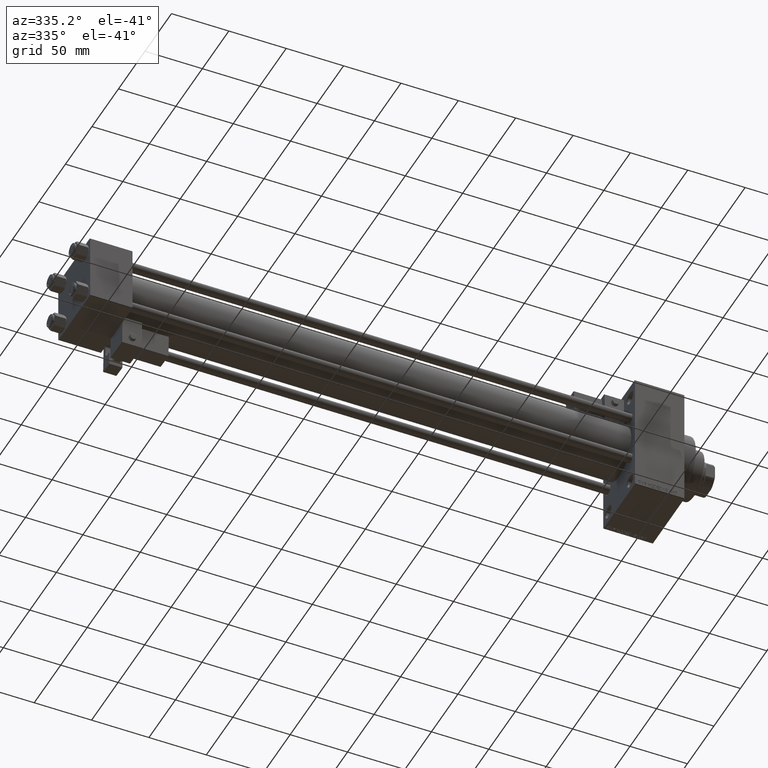
[diagram: clean part render]
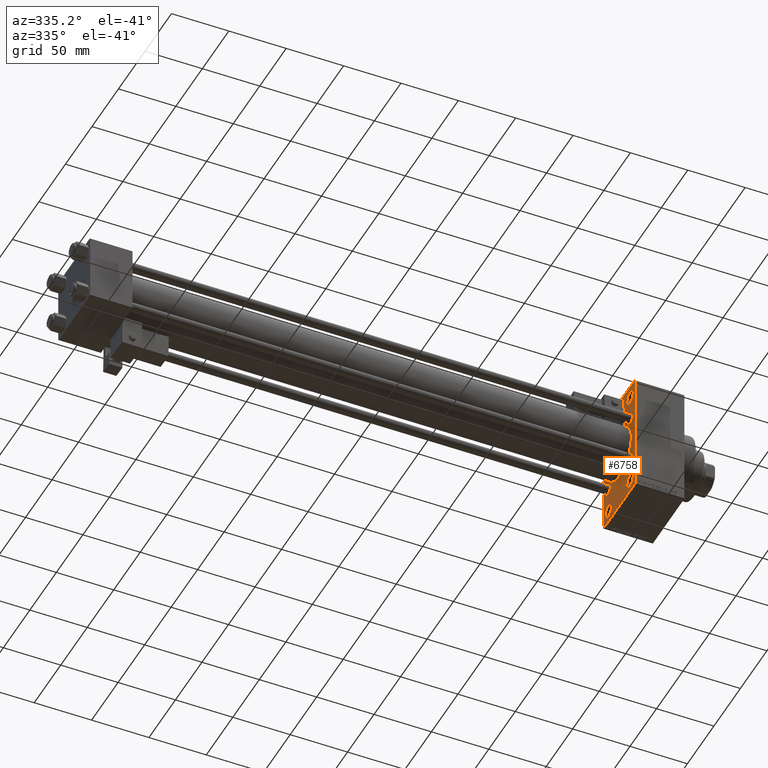
[diagram: same view with one face highlighted and labeled with its STEP entity id]
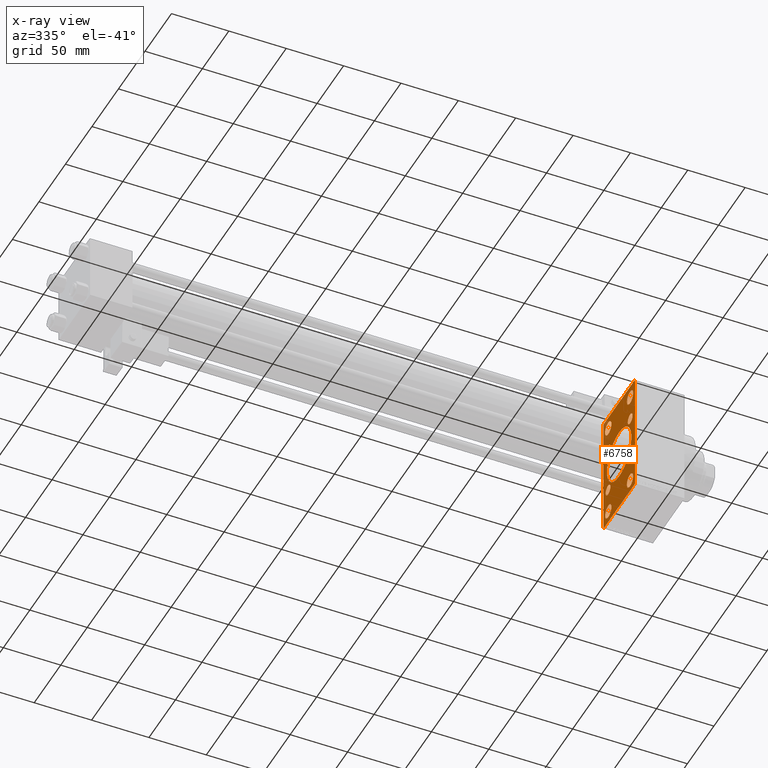
[diagram: x-ray of the same camera — body ghosted, the highlighted face saturated]
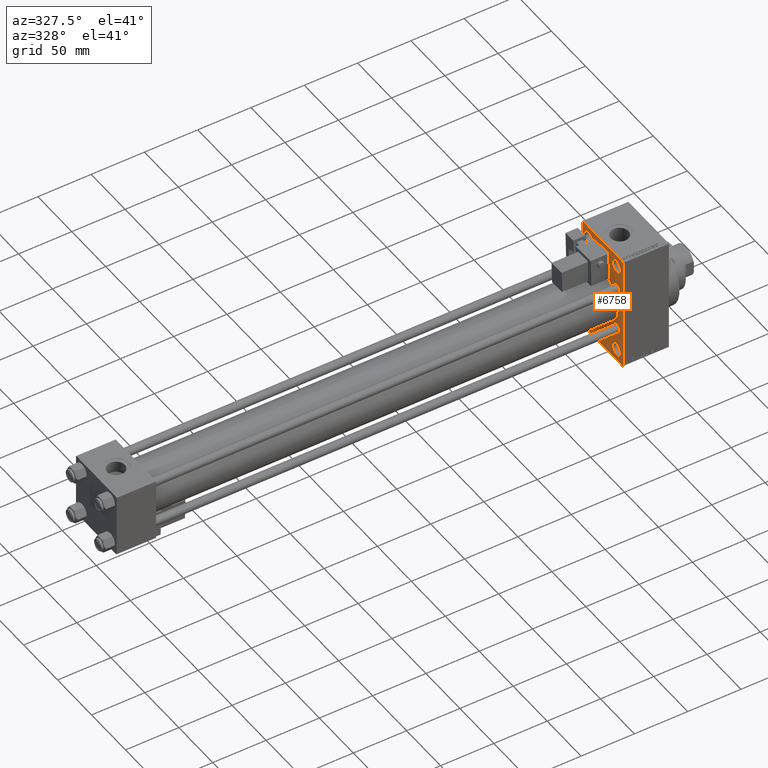
[diagram: same view with one face highlighted and labeled with its STEP entity id]
A machine part, auxiliary view. The second image highlights one B-rep face of the part: STEP entity #6758.
The next image is the same camera in x-ray: the body ghosted, the highlighted face saturated — about 7% of this face is hidden behind the body in this view.
A second angle (auxiliary view) of the same face is appended — the face is thin or edge-on in the first view.
In plain terms, the highlighted planar face has unit normal (-1, 0, 0).
Its self-contained STEP definition (entity closure, byte-faithful):
#145 = VECTOR ( 'NONE', #41804, 1000.000000000000000 ) ;
#149 = DIRECTION ( 'NONE',  ( 0.000000000000000000, 0.000000000000000000, -1.000000000000000000 ) ) ;
#318 = CARTESIAN_POINT ( 'NONE',  ( 475.0000000000000000, -20.50000000000000000, -49.49999999999977973 ) ) ;
#433 = ORIENTED_EDGE ( 'NONE', *, *, #10654, .T. ) ;
#554 = FACE_BOUND ( 'NONE', #15394, .T. ) ;
#781 = DIRECTION ( 'NONE',  ( 1.000000000000000000, -0.000000000000000000, 0.000000000000000000 ) ) ;
#843 = CARTESIAN_POINT ( 'NONE',  ( 475.0000000000000000, -20.50000000000000000, 37.50000000000021316 ) ) ;
#1181 = CARTESIAN_POINT ( 'NONE',  ( 475.0000000000000000, -20.50000000000000000, -43.50000000000000000 ) ) ;
#1565 = ORIENTED_EDGE ( 'NONE', *, *, #30755, .F. ) ;
#2304 = AXIS2_PLACEMENT_3D ( 'NONE', #37593, #15707, #49411 ) ;
#2659 = ORIENTED_EDGE ( 'NONE', *, *, #17881, .T. ) ;
#3098 = CARTESIAN_POINT ( 'NONE',  ( 475.0000000000000000, 29.99999999999999645, 53.99999999999999289 ) ) ;
#3755 = DIRECTION ( 'NONE',  ( 1.000000000000000000, -0.000000000000000000, 0.000000000000000000 ) ) ;
#3869 = AXIS2_PLACEMENT_3D ( 'NONE', #24591, #39925, #23592 ) ;
#3991 = EDGE_CURVE ( 'NONE', #45500, #45866, #14146, .T. ) ;
#4036 = ORIENTED_EDGE ( 'NONE', *, *, #25862, .T. ) ;
#4416 = AXIS2_PLACEMENT_3D ( 'NONE', #1181, #46461, #42934 ) ;
#4889 = CARTESIAN_POINT ( 'NONE',  ( 475.0000000000000000, -2.602085213965210642E-15, 0.000000000000000000 ) ) ;
#4954 = ORIENTED_EDGE ( 'NONE', *, *, #30542, .T. ) ;
#5023 = CARTESIAN_POINT ( 'NONE',  ( 475.0000000000000000, 20.50000000000000000, -43.50000000000000000 ) ) ;
#5067 = FACE_BOUND ( 'NONE', #29469, .T. ) ;
#5218 = DIRECTION ( 'NONE',  ( 0.000000000000000000, 0.000000000000000000, 1.000000000000000000 ) ) ;
#5305 = VERTEX_POINT ( 'NONE', #15485 ) ;
#5471 = ORIENTED_EDGE ( 'NONE', *, *, #7710, .T. ) ;
#5509 = VERTEX_POINT ( 'NONE', #20967 ) ;
#5640 = CARTESIAN_POINT ( 'NONE',  ( 475.0000000000000000, 41.99999999999832312, -42.00000000000298428 ) ) ;
#5777 = ORIENTED_EDGE ( 'NONE', *, *, #21333, .T. ) ;
#5825 = LINE ( 'NONE', #44813, #26055 ) ;
#5847 = EDGE_CURVE ( 'NONE', #41041, #48959, #7759, .T. ) ;
#6113 = DIRECTION ( 'NONE',  ( 0.000000000000000000, 0.000000000000000000, 1.000000000000000000 ) ) ;
#6187 = AXIS2_PLACEMENT_3D ( 'NONE', #14362, #21403, #29684 ) ;
#6601 = LINE ( 'NONE', #13909, #145 ) ;
#6655 = EDGE_LOOP ( 'NONE', ( #36504, #41185 ) ) ;
#6730 = EDGE_CURVE ( 'NONE', #5509, #5305, #42311, .T. ) ;
#6758 = ADVANCED_FACE ( 'NONE', ( #16384, #24423, #46814, #5067, #31462, #27698, #554, #20159, #34988, #46572 ), #19912, .T. ) ;
#7269 = CARTESIAN_POINT ( 'NONE',  ( 475.0000000000000000, 20.50000000000000000, 49.49999999999977973 ) ) ;
#7348 = ORIENTED_EDGE ( 'NONE', *, *, #3991, .T. ) ;
#7349 = CARTESIAN_POINT ( 'NONE',  ( 475.0000000000000000, -20.84999999999999076, -25.35000000000001208 ) ) ;
#7359 = CARTESIAN_POINT ( 'NONE',  ( 475.0000000000000000, 29.99999999999999645, -54.49999999999999289 ) ) ;
#7385 = DIRECTION ( 'NONE',  ( 0.000000000000000000, 0.000000000000000000, 1.000000000000000000 ) ) ;
#7710 = EDGE_CURVE ( 'NONE', #48959, #41041, #16599, .T. ) ;
#7759 = CIRCLE ( 'NONE', #35837, 4.500000000000007105 ) ;
#7768 = ORIENTED_EDGE ( 'NONE', *, *, #25515, .T. ) ;
#7989 = ORIENTED_EDGE ( 'NONE', *, *, #44383, .T. ) ;
#8160 = DIRECTION ( 'NONE',  ( 1.000000000000000000, 0.000000000000000000, 0.000000000000000000 ) ) ;
#8308 = ORIENTED_EDGE ( 'NONE', *, *, #25000, .T. ) ;
#8341 = DIRECTION ( 'NONE',  ( -1.000000000000000000, 0.000000000000000000, -0.000000000000000000 ) ) ;
#9006 = EDGE_CURVE ( 'NONE', #45419, #43370, #18251, .T. ) ;
#9247 = EDGE_LOOP ( 'NONE', ( #29840, #5471 ) ) ;
#9309 = DIRECTION ( 'NONE',  ( 0.000000000000000000, 0.000000000000000000, 1.000000000000000000 ) ) ;
#9415 = CARTESIAN_POINT ( 'NONE',  ( 475.0000000000000000, -20.50000000000000000, -37.50000000000021316 ) ) ;
#9627 = EDGE_CURVE ( 'NONE', #23531, #16117, #12676, .T. ) ;
#10138 = EDGE_CURVE ( 'NONE', #31772, #14517, #15888, .T. ) ;
#10406 = AXIS2_PLACEMENT_3D ( 'NONE', #21694, #48605, #6113 ) ;
#10654 = EDGE_CURVE ( 'NONE', #42181, #35706, #24737, .T. ) ;
#10757 = DIRECTION ( 'NONE',  ( 0.000000000000000000, 0.000000000000000000, 1.000000000000000000 ) ) ;
#10865 = VERTEX_POINT ( 'NONE', #31951 ) ;
#11597 = EDGE_LOOP ( 'NONE', ( #13631, #28954, #27965, #5777, #1565, #8308, #43410, #4036 ) ) ;
#11745 = EDGE_CURVE ( 'NONE', #16117, #23531, #46467, .T. ) ;
#11845 = ORIENTED_EDGE ( 'NONE', *, *, #27506, .T. ) ;
#11969 = CARTESIAN_POINT ( 'NONE',  ( 475.0000000000000000, 20.50000000000000000, -43.50000000000000000 ) ) ;
#12086 = CARTESIAN_POINT ( 'NONE',  ( 475.0000000000000000, 20.50000000000000000, 43.50000000000000000 ) ) ;
#12327 = CARTESIAN_POINT ( 'NONE',  ( 475.0000000000000000, 20.50000000000000000, -49.49999999999977973 ) ) ;
#12676 = CIRCLE ( 'NONE', #31956, 5.999999999999783284 ) ;
#13164 = EDGE_CURVE ( 'NONE', #14517, #31772, #38394, .T. ) ;
#13186 = DIRECTION ( 'NONE',  ( -0.000000000000000000, -0.7071067811865867636, -0.7071067811865081598 ) ) ;
#13365 = AXIS2_PLACEMENT_3D ( 'NONE', #23674, #8341, #35480 ) ;
#13433 = LINE ( 'NONE', #5640, #24295 ) ;
#13631 = ORIENTED_EDGE ( 'NONE', *, *, #6730, .T. ) ;
#13790 = CARTESIAN_POINT ( 'NONE',  ( 475.0000000000000000, -2.602085213965210642E-15, 23.00000000000000000 ) ) ;
#13909 = CARTESIAN_POINT ( 'NONE',  ( 475.0000000000000000, -41.99999999999843681, 42.00000000000279954 ) ) ;
#14060 = CARTESIAN_POINT ( 'NONE',  ( 475.0000000000000000, -2.602085213965210642E-15, 0.000000000000000000 ) ) ;
#14146 = CIRCLE ( 'NONE', #42254, 4.500000000000007105 ) ;
#14346 = AXIS2_PLACEMENT_3D ( 'NONE', #12086, #781, #23404 ) ;
#14362 = CARTESIAN_POINT ( 'NONE',  ( 475.0000000000000000, -20.84999999999999076, 20.85000000000000497 ) ) ;
#14395 = DIRECTION ( 'NONE',  ( 0.000000000000000000, 0.000000000000000000, 1.000000000000000000 ) ) ;
#14517 = VERTEX_POINT ( 'NONE', #17224 ) ;
#14524 = ORIENTED_EDGE ( 'NONE', *, *, #34499, .T. ) ;
#14869 = EDGE_CURVE ( 'NONE', #23648, #49344, #15957, .T. ) ;
#15007 = CIRCLE ( 'NONE', #16606, 4.500000000000007105 ) ;
#15394 = EDGE_LOOP ( 'NONE', ( #23390, #37493 ) ) ;
#15450 = ORIENTED_EDGE ( 'NONE', *, *, #23840, .T. ) ;
#15485 = CARTESIAN_POINT ( 'NONE',  ( 475.0000000000000000, -29.49999999999994671, -54.50000000000000000 ) ) ;
#15518 = AXIS2_PLACEMENT_3D ( 'NONE', #33358, #43771, #9309 ) ;
#15707 = DIRECTION ( 'NONE',  ( 1.000000000000000000, -0.000000000000000000, 0.000000000000000000 ) ) ;
#15714 = DIRECTION ( 'NONE',  ( 0.000000000000000000, 0.000000000000000000, -1.000000000000000000 ) ) ;
#15888 = CIRCLE ( 'NONE', #3869, 4.500000000000007105 ) ;
#15957 = CIRCLE ( 'NONE', #14346, 5.999999999999783284 ) ;
#16117 = VERTEX_POINT ( 'NONE', #843 ) ;
#16384 = FACE_BOUND ( 'NONE', #6655, .T. ) ;
#16599 = CIRCLE ( 'NONE', #6187, 4.500000000000007105 ) ;
#16606 = AXIS2_PLACEMENT_3D ( 'NONE', #30885, #3755, #22598 ) ;
#16653 = DIRECTION ( 'NONE',  ( 1.000000000000000000, 0.000000000000000000, 0.000000000000000000 ) ) ;
#16748 = AXIS2_PLACEMENT_3D ( 'NONE', #11969, #46677, #27811 ) ;
#16791 = CARTESIAN_POINT ( 'NONE',  ( 475.0000000000000000, 20.84999999999999787, -20.85000000000000142 ) ) ;
#17145 = DIRECTION ( 'NONE',  ( 1.000000000000000000, -0.000000000000000000, 0.000000000000000000 ) ) ;
#17224 = CARTESIAN_POINT ( 'NONE',  ( 475.0000000000000000, 20.84999999999999787, -25.35000000000000853 ) ) ;
#17274 = CARTESIAN_POINT ( 'NONE',  ( 475.0000000000000000, 20.84999999999999787, -16.34999999999999432 ) ) ;
#17881 = EDGE_CURVE ( 'NONE', #49344, #23648, #38531, .T. ) ;
#17903 = CARTESIAN_POINT ( 'NONE',  ( 475.0000000000000000, -20.50000000000000000, 43.50000000000000000 ) ) ;
#18251 = CIRCLE ( 'NONE', #37529, 23.00000000000000000 ) ;
#18255 = CARTESIAN_POINT ( 'NONE',  ( 475.0000000000000000, 41.99999999999832312, 42.00000000000298428 ) ) ;
#18410 = DIRECTION ( 'NONE',  ( 1.000000000000000000, -0.000000000000000000, 0.000000000000000000 ) ) ;
#18771 = LINE ( 'NONE', #46662, #22642 ) ;
#19912 = PLANE ( 'NONE',  #13365 ) ;
#20159 = FACE_BOUND ( 'NONE', #30474, .T. ) ;
#20967 = CARTESIAN_POINT ( 'NONE',  ( 475.0000000000000000, 29.49999999999993960, -54.49999999999999289 ) ) ;
#21012 = CARTESIAN_POINT ( 'NONE',  ( 475.0000000000000000, 29.99999999999999645, 54.49999999999999289 ) ) ;
#21228 = VERTEX_POINT ( 'NONE', #48102 ) ;
#21333 = EDGE_CURVE ( 'NONE', #32313, #21228, #6601, .T. ) ;
#21403 = DIRECTION ( 'NONE',  ( 1.000000000000000000, -0.000000000000000000, 0.000000000000000000 ) ) ;
#21631 = DIRECTION ( 'NONE',  ( 0.000000000000000000, 0.000000000000000000, 1.000000000000000000 ) ) ;
#21694 = CARTESIAN_POINT ( 'NONE',  ( 475.0000000000000000, 20.50000000000000000, 43.50000000000000000 ) ) ;
#22598 = DIRECTION ( 'NONE',  ( 0.000000000000000000, 0.000000000000000000, 1.000000000000000000 ) ) ;
#22642 = VECTOR ( 'NONE', #149, 1000.000000000000000 ) ;
#22691 = DIRECTION ( 'NONE',  ( 0.000000000000000000, -1.000000000000000000, -1.156482317317871478E-16 ) ) ;
#22800 = VERTEX_POINT ( 'NONE', #38472 ) ;
#23390 = ORIENTED_EDGE ( 'NONE', *, *, #10138, .T. ) ;
#23404 = DIRECTION ( 'NONE',  ( 0.000000000000000000, 0.000000000000000000, 1.000000000000000000 ) ) ;
#23531 = VERTEX_POINT ( 'NONE', #47508 ) ;
#23592 = DIRECTION ( 'NONE',  ( 0.000000000000000000, 0.000000000000000000, 1.000000000000000000 ) ) ;
#23648 = VERTEX_POINT ( 'NONE', #44143 ) ;
#23674 = CARTESIAN_POINT ( 'NONE',  ( 475.0000000000000000, 0.000000000000000000, 0.000000000000000000 ) ) ;
#23840 = EDGE_CURVE ( 'NONE', #43370, #45419, #33153, .T. ) ;
#24256 = VECTOR ( 'NONE', #44924, 1000.000000000000000 ) ;
#24295 = VECTOR ( 'NONE', #13186, 1000.000000000000000 ) ;
#24423 = FACE_BOUND ( 'NONE', #30158, .T. ) ;
#24591 = CARTESIAN_POINT ( 'NONE',  ( 475.0000000000000000, 20.84999999999999787, -20.85000000000000142 ) ) ;
#24737 = CIRCLE ( 'NONE', #16748, 5.999999999999783284 ) ;
#25000 = EDGE_CURVE ( 'NONE', #45823, #42766, #45169, .T. ) ;
#25392 = CARTESIAN_POINT ( 'NONE',  ( 475.0000000000000000, -20.84999999999999076, -20.85000000000000497 ) ) ;
#25515 = EDGE_CURVE ( 'NONE', #35706, #42181, #39518, .T. ) ;
#25550 = CARTESIAN_POINT ( 'NONE',  ( 475.0000000000000000, 20.84999999999999787, 16.34999999999999432 ) ) ;
#25612 = CARTESIAN_POINT ( 'NONE',  ( 475.0000000000000000, -41.99999999999884182, -42.00000000000204636 ) ) ;
#25837 = CIRCLE ( 'NONE', #37056, 4.500000000000007105 ) ;
#25858 = DIRECTION ( 'NONE',  ( 0.000000000000000000, 0.000000000000000000, -1.000000000000000000 ) ) ;
#25862 = EDGE_CURVE ( 'NONE', #22800, #5509, #13433, .T. ) ;
#25977 = VECTOR ( 'NONE', #28800, 1000.000000000000000 ) ;
#26055 = VECTOR ( 'NONE', #29453, 1000.000000000000000 ) ;
#26305 = CARTESIAN_POINT ( 'NONE',  ( 475.0000000000000000, 20.84999999999999787, 25.35000000000000853 ) ) ;
#27506 = EDGE_CURVE ( 'NONE', #28304, #28524, #43617, .T. ) ;
#27539 = ORIENTED_EDGE ( 'NONE', *, *, #49380, .T. ) ;
#27698 = FACE_BOUND ( 'NONE', #33225, .T. ) ;
#27811 = DIRECTION ( 'NONE',  ( 0.000000000000000000, 0.000000000000000000, 1.000000000000000000 ) ) ;
#27965 = ORIENTED_EDGE ( 'NONE', *, *, #35050, .F. ) ;
#28304 = VERTEX_POINT ( 'NONE', #7349 ) ;
#28524 = VERTEX_POINT ( 'NONE', #29157 ) ;
#28800 = DIRECTION ( 'NONE',  ( 0.000000000000000000, 0.000000000000000000, -1.000000000000000000 ) ) ;
#28954 = ORIENTED_EDGE ( 'NONE', *, *, #39878, .T. ) ;
#29131 = AXIS2_PLACEMENT_3D ( 'NONE', #4889, #8160, #15714 ) ;
#29157 = CARTESIAN_POINT ( 'NONE',  ( 475.0000000000000000, -20.84999999999999076, -16.34999999999999787 ) ) ;
#29453 = DIRECTION ( 'NONE',  ( 0.000000000000000000, -1.000000000000000000, 1.156482317317871478E-16 ) ) ;
#29469 = EDGE_LOOP ( 'NONE', ( #2659, #42091 ) ) ;
#29684 = DIRECTION ( 'NONE',  ( 0.000000000000000000, 0.000000000000000000, 1.000000000000000000 ) ) ;
#29840 = ORIENTED_EDGE ( 'NONE', *, *, #5847, .T. ) ;
#30158 = EDGE_LOOP ( 'NONE', ( #7989, #4954 ) ) ;
#30208 = CARTESIAN_POINT ( 'NONE',  ( 475.0000000000000000, -20.84999999999999076, 16.34999999999999787 ) ) ;
#30474 = EDGE_LOOP ( 'NONE', ( #14524, #11845 ) ) ;
#30542 = EDGE_CURVE ( 'NONE', #39249, #32120, #34058, .T. ) ;
#30755 = EDGE_CURVE ( 'NONE', #45823, #21228, #5825, .T. ) ;
#30758 = CARTESIAN_POINT ( 'NONE',  ( 475.0000000000000000, 20.50000000000000000, -37.50000000000021316 ) ) ;
#30885 = CARTESIAN_POINT ( 'NONE',  ( 475.0000000000000000, 20.84999999999999787, 20.85000000000000142 ) ) ;
#31462 = FACE_BOUND ( 'NONE', #9247, .T. ) ;
#31772 = VERTEX_POINT ( 'NONE', #17274 ) ;
#31927 = EDGE_LOOP ( 'NONE', ( #433, #7768 ) ) ;
#31951 = CARTESIAN_POINT ( 'NONE',  ( 475.0000000000000000, -30.00000000000000000, -53.99999999999998579 ) ) ;
#31956 = AXIS2_PLACEMENT_3D ( 'NONE', #17903, #18410, #14395 ) ;
#32084 = LINE ( 'NONE', #21012, #25977 ) ;
#32120 = VERTEX_POINT ( 'NONE', #9415 ) ;
#32313 = VERTEX_POINT ( 'NONE', #35510 ) ;
#32431 = VECTOR ( 'NONE', #33655, 1000.000000000000114 ) ;
#32769 = AXIS2_PLACEMENT_3D ( 'NONE', #16791, #39662, #5218 ) ;
#32845 = CARTESIAN_POINT ( 'NONE',  ( 475.0000000000000000, 2.146024240737016609E-16, -23.00000000000000000 ) ) ;
#33148 = LINE ( 'NONE', #25612, #32431 ) ;
#33153 = CIRCLE ( 'NONE', #29131, 23.00000000000000000 ) ;
#33180 = DIRECTION ( 'NONE',  ( 1.000000000000000000, -0.000000000000000000, 0.000000000000000000 ) ) ;
#33225 = EDGE_LOOP ( 'NONE', ( #7348, #27539 ) ) ;
#33358 = CARTESIAN_POINT ( 'NONE',  ( 475.0000000000000000, -20.84999999999999076, -20.85000000000000497 ) ) ;
#33655 = DIRECTION ( 'NONE',  ( 0.000000000000000000, -0.7071067811865745512, 0.7071067811865204833 ) ) ;
#34058 = CIRCLE ( 'NONE', #44515, 5.999999999999783284 ) ;
#34499 = EDGE_CURVE ( 'NONE', #28524, #28304, #25837, .T. ) ;
#34988 = FACE_BOUND ( 'NONE', #39945, .T. ) ;
#35050 = EDGE_CURVE ( 'NONE', #32313, #10865, #18771, .T. ) ;
#35372 = CARTESIAN_POINT ( 'NONE',  ( 475.0000000000000000, 29.49999999999993960, 54.49999999999999289 ) ) ;
#35480 = DIRECTION ( 'NONE',  ( -0.000000000000000000, 0.000000000000000000, 1.000000000000000000 ) ) ;
#35510 = CARTESIAN_POINT ( 'NONE',  ( 475.0000000000000000, -30.00000000000000000, 54.00000000000000000 ) ) ;
#35706 = VERTEX_POINT ( 'NONE', #12327 ) ;
#35837 = AXIS2_PLACEMENT_3D ( 'NONE', #44297, #17145, #36483 ) ;
#36483 = DIRECTION ( 'NONE',  ( 0.000000000000000000, 0.000000000000000000, 1.000000000000000000 ) ) ;
#36504 = ORIENTED_EDGE ( 'NONE', *, *, #9627, .T. ) ;
#37056 = AXIS2_PLACEMENT_3D ( 'NONE', #25392, #33180, #21631 ) ;
#37452 = VECTOR ( 'NONE', #22691, 1000.000000000000000 ) ;
#37493 = ORIENTED_EDGE ( 'NONE', *, *, #13164, .T. ) ;
#37529 = AXIS2_PLACEMENT_3D ( 'NONE', #14060, #16653, #25858 ) ;
#37593 = CARTESIAN_POINT ( 'NONE',  ( 475.0000000000000000, -20.50000000000000000, 43.50000000000000000 ) ) ;
#38314 = DIRECTION ( 'NONE',  ( 1.000000000000000000, -0.000000000000000000, 0.000000000000000000 ) ) ;
#38394 = CIRCLE ( 'NONE', #32769, 4.500000000000007105 ) ;
#38419 = EDGE_CURVE ( 'NONE', #42766, #22800, #32084, .T. ) ;
#38472 = CARTESIAN_POINT ( 'NONE',  ( 475.0000000000000000, 29.99999999999999645, -53.99999999999999289 ) ) ;
#38531 = CIRCLE ( 'NONE', #10406, 5.999999999999783284 ) ;
#39249 = VERTEX_POINT ( 'NONE', #318 ) ;
#39518 = CIRCLE ( 'NONE', #45134, 5.999999999999783284 ) ;
#39662 = DIRECTION ( 'NONE',  ( 1.000000000000000000, -0.000000000000000000, 0.000000000000000000 ) ) ;
#39878 = EDGE_CURVE ( 'NONE', #5305, #10865, #33148, .T. ) ;
#39925 = DIRECTION ( 'NONE',  ( 1.000000000000000000, -0.000000000000000000, 0.000000000000000000 ) ) ;
#39945 = EDGE_LOOP ( 'NONE', ( #15450, #48388 ) ) ;
#40695 = CARTESIAN_POINT ( 'NONE',  ( 475.0000000000000000, 20.84999999999999787, 20.85000000000000142 ) ) ;
#41041 = VERTEX_POINT ( 'NONE', #44927 ) ;
#41185 = ORIENTED_EDGE ( 'NONE', *, *, #11745, .T. ) ;
#41804 = DIRECTION ( 'NONE',  ( -0.000000000000000000, 0.7071067811865843211, 0.7071067811865108244 ) ) ;
#42091 = ORIENTED_EDGE ( 'NONE', *, *, #14869, .T. ) ;
#42181 = VERTEX_POINT ( 'NONE', #30758 ) ;
#42254 = AXIS2_PLACEMENT_3D ( 'NONE', #40695, #45226, #10757 ) ;
#42311 = LINE ( 'NONE', #7359, #37452 ) ;
#42766 = VERTEX_POINT ( 'NONE', #3098 ) ;
#42934 = DIRECTION ( 'NONE',  ( 0.000000000000000000, 0.000000000000000000, 1.000000000000000000 ) ) ;
#43370 = VERTEX_POINT ( 'NONE', #13790 ) ;
#43410 = ORIENTED_EDGE ( 'NONE', *, *, #38419, .T. ) ;
#43617 = CIRCLE ( 'NONE', #15518, 4.500000000000007105 ) ;
#43751 = CIRCLE ( 'NONE', #4416, 5.999999999999783284 ) ;
#43771 = DIRECTION ( 'NONE',  ( 1.000000000000000000, -0.000000000000000000, 0.000000000000000000 ) ) ;
#44143 = CARTESIAN_POINT ( 'NONE',  ( 475.0000000000000000, 20.50000000000000000, 37.50000000000021316 ) ) ;
#44297 = CARTESIAN_POINT ( 'NONE',  ( 475.0000000000000000, -20.84999999999999076, 20.85000000000000497 ) ) ;
#44383 = EDGE_CURVE ( 'NONE', #32120, #39249, #43751, .T. ) ;
#44515 = AXIS2_PLACEMENT_3D ( 'NONE', #49630, #38314, #7385 ) ;
#44813 = CARTESIAN_POINT ( 'NONE',  ( 475.0000000000000000, 29.99999999999999645, 54.49999999999999289 ) ) ;
#44924 = DIRECTION ( 'NONE',  ( 0.000000000000000000, 0.7071067811865867636, -0.7071067811865081598 ) ) ;
#44927 = CARTESIAN_POINT ( 'NONE',  ( 475.0000000000000000, -20.84999999999999076, 25.35000000000001208 ) ) ;
#45134 = AXIS2_PLACEMENT_3D ( 'NONE', #5023, #48006, #47268 ) ;
#45169 = LINE ( 'NONE', #18255, #24256 ) ;
#45226 = DIRECTION ( 'NONE',  ( 1.000000000000000000, -0.000000000000000000, 0.000000000000000000 ) ) ;
#45419 = VERTEX_POINT ( 'NONE', #32845 ) ;
#45500 = VERTEX_POINT ( 'NONE', #26305 ) ;
#45823 = VERTEX_POINT ( 'NONE', #35372 ) ;
#45866 = VERTEX_POINT ( 'NONE', #25550 ) ;
#46461 = DIRECTION ( 'NONE',  ( 1.000000000000000000, -0.000000000000000000, 0.000000000000000000 ) ) ;
#46467 = CIRCLE ( 'NONE', #2304, 5.999999999999783284 ) ;
#46572 = FACE_OUTER_BOUND ( 'NONE', #11597, .T. ) ;
#46662 = CARTESIAN_POINT ( 'NONE',  ( 475.0000000000000000, -30.00000000000000000, 54.50000000000000000 ) ) ;
#46677 = DIRECTION ( 'NONE',  ( 1.000000000000000000, -0.000000000000000000, 0.000000000000000000 ) ) ;
#46814 = FACE_BOUND ( 'NONE', #31927, .T. ) ;
#47268 = DIRECTION ( 'NONE',  ( 0.000000000000000000, 0.000000000000000000, 1.000000000000000000 ) ) ;
#47508 = CARTESIAN_POINT ( 'NONE',  ( 475.0000000000000000, -20.50000000000000000, 49.49999999999977973 ) ) ;
#48006 = DIRECTION ( 'NONE',  ( 1.000000000000000000, -0.000000000000000000, 0.000000000000000000 ) ) ;
#48102 = CARTESIAN_POINT ( 'NONE',  ( 475.0000000000000000, -29.49999999999994671, 54.50000000000000000 ) ) ;
#48388 = ORIENTED_EDGE ( 'NONE', *, *, #9006, .T. ) ;
#48605 = DIRECTION ( 'NONE',  ( 1.000000000000000000, -0.000000000000000000, 0.000000000000000000 ) ) ;
#48959 = VERTEX_POINT ( 'NONE', #30208 ) ;
#49344 = VERTEX_POINT ( 'NONE', #7269 ) ;
#49380 = EDGE_CURVE ( 'NONE', #45866, #45500, #15007, .T. ) ;
#49411 = DIRECTION ( 'NONE',  ( 0.000000000000000000, 0.000000000000000000, 1.000000000000000000 ) ) ;
#49630 = CARTESIAN_POINT ( 'NONE',  ( 475.0000000000000000, -20.50000000000000000, -43.50000000000000000 ) ) ;